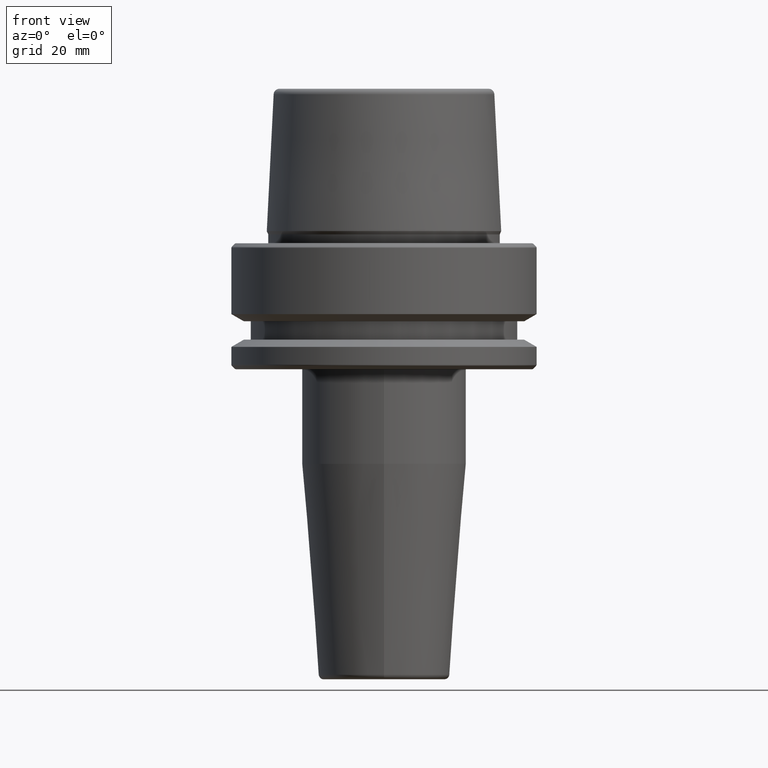
[diagram: clean part render]
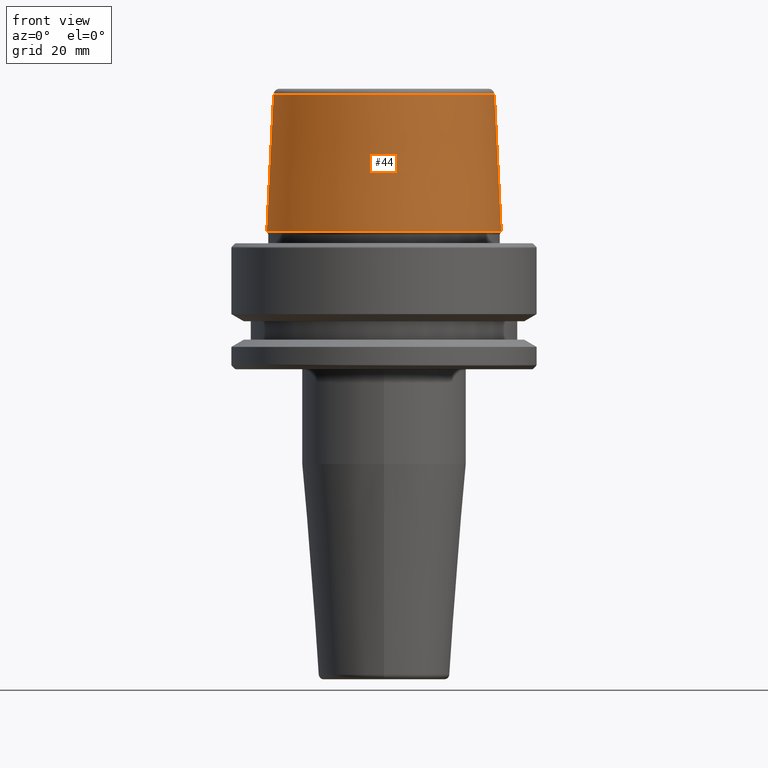
[diagram: same view with one face highlighted and labeled with its STEP entity id]
A machine part, front view. The second image highlights one B-rep face of the part: STEP entity #44.
In plain terms, the highlighted conical surface has half-angle 2.868 deg.
Its self-contained STEP definition (entity closure, byte-faithful):
#7 = ORIENTED_EDGE ( 'NONE', *, *, #536, .F. ) ;
#10 = ORIENTED_EDGE ( 'NONE', *, *, #311, .F. ) ;
#42 = DIRECTION ( 'NONE',  ( 0.0000000000000000000, 0.0000000000000000000, -1.000000000000000000 ) ) ;
#44 = ADVANCED_FACE ( 'NONE', ( #602 ), #804, .T. ) ;
#74 = DIRECTION ( 'NONE',  ( 1.000000000000000000, 0.0000000000000000000, 0.0000000000000000000 ) ) ;
#135 = EDGE_LOOP ( 'NONE', ( #10, #7, #1068, #1100 ) ) ;
#166 = DIRECTION ( 'NONE',  ( -0.0000000000000000000, -0.0000000000000000000, 1.000000000000000000 ) ) ;
#193 = DIRECTION ( 'NONE',  ( 0.05003611051310804400, 6.127656258166099700E-018, -0.9987474093306675200 ) ) ;
#231 = VERTEX_POINT ( 'NONE', #1239 ) ;
#240 = AXIS2_PLACEMENT_3D ( 'NONE', #420, #317, #1003 ) ;
#260 = CARTESIAN_POINT ( 'NONE',  ( 0.0000000000000000000, 0.0000000000000000000, 2.500000000000002200 ) ) ;
#311 = EDGE_CURVE ( 'NONE', #600, #460, #535, .T. ) ;
#317 = DIRECTION ( 'NONE',  ( -0.0000000000000000000, -0.0000000000000000000, 1.000000000000000000 ) ) ;
#323 = AXIS2_PLACEMENT_3D ( 'NONE', #260, #166, #74 ) ;
#381 = CARTESIAN_POINT ( 'NONE',  ( -24.19537568275369200, 2.963078938405201500E-015, 2.500000000000002200 ) ) ;
#420 = CARTESIAN_POINT ( 'NONE',  ( 0.0000000000000000000, 0.0000000000000000000, 30.76004333261571900 ) ) ;
#433 = CIRCLE ( 'NONE', #240, 22.77957961851797100 ) ;
#460 = VERTEX_POINT ( 'NONE', #661 ) ;
#535 = LINE ( 'NONE', #886, #976 ) ;
#536 = EDGE_CURVE ( 'NONE', #231, #600, #433, .T. ) ;
#600 = VERTEX_POINT ( 'NONE', #946 ) ;
#601 = LINE ( 'NONE', #1119, #832 ) ;
#602 = FACE_OUTER_BOUND ( 'NONE', #135, .T. ) ;
#645 = VERTEX_POINT ( 'NONE', #381 ) ;
#661 = CARTESIAN_POINT ( 'NONE',  ( 24.19537568275369200, 0.0000000000000000000, 2.500000000000002200 ) ) ;
#670 = AXIS2_PLACEMENT_3D ( 'NONE', #1011, #42, #1110 ) ;
#701 = DIRECTION ( 'NONE',  ( -0.05003611051310804400, 0.0000000000000000000, -0.9987474093306675200 ) ) ;
#804 = CONICAL_SURFACE ( 'NONE', #670, 24.19537568275369200, 0.05005701257455997400 ) ;
#830 = EDGE_CURVE ( 'NONE', #231, #645, #601, .T. ) ;
#832 = VECTOR ( 'NONE', #701, 1000.000000000000200 ) ;
#886 = CARTESIAN_POINT ( 'NONE',  ( 24.19537568275369200, 2.963078938405201500E-015, 2.500000000000002200 ) ) ;
#946 = CARTESIAN_POINT ( 'NONE',  ( 22.77957961851797100, 2.876386432489616700E-015, 30.76004333261571900 ) ) ;
#976 = VECTOR ( 'NONE', #193, 1000.000000000000200 ) ;
#980 = EDGE_CURVE ( 'NONE', #645, #460, #997, .T. ) ;
#997 = CIRCLE ( 'NONE', #323, 24.19537568275369200 ) ;
#1003 = DIRECTION ( 'NONE',  ( 1.000000000000000000, 0.0000000000000000000, 0.0000000000000000000 ) ) ;
#1011 = CARTESIAN_POINT ( 'NONE',  ( 0.0000000000000000000, 0.0000000000000000000, 2.500000000000002200 ) ) ;
#1068 = ORIENTED_EDGE ( 'NONE', *, *, #830, .T. ) ;
#1100 = ORIENTED_EDGE ( 'NONE', *, *, #980, .T. ) ;
#1110 = DIRECTION ( 'NONE',  ( -1.000000000000000000, 0.0000000000000000000, 0.0000000000000000000 ) ) ;
#1119 = CARTESIAN_POINT ( 'NONE',  ( -24.19537568275369200, 0.0000000000000000000, 2.500000000000002200 ) ) ;
#1239 = CARTESIAN_POINT ( 'NONE',  ( -22.77957961851797100, 0.0000000000000000000, 30.76004333261571900 ) ) ;